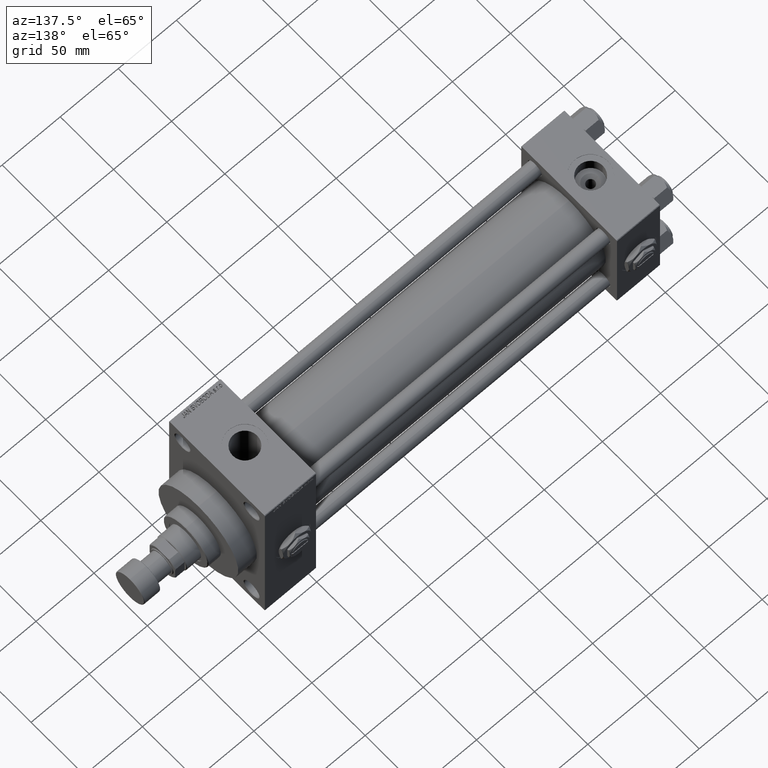
[diagram: clean part render]
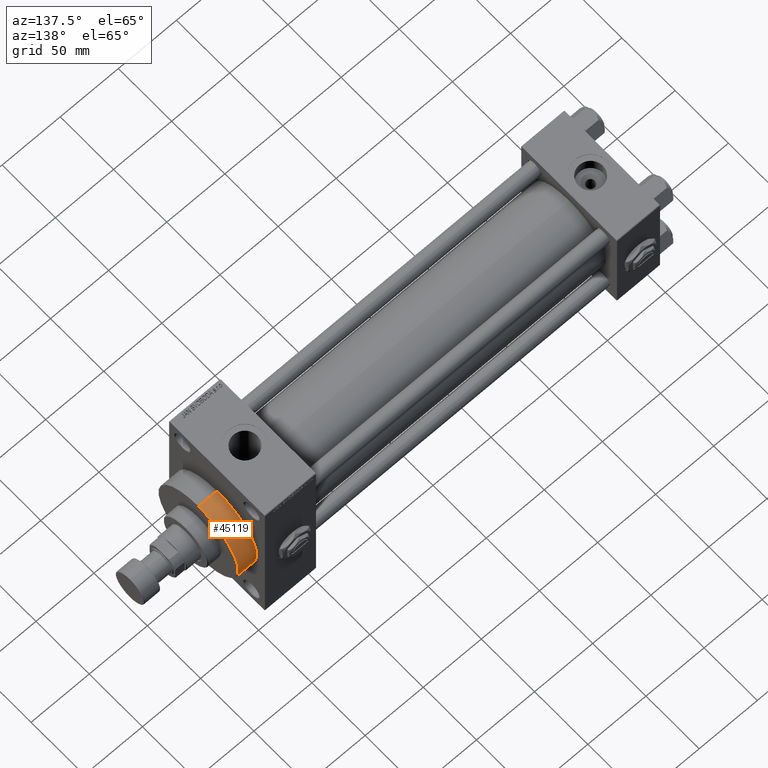
[diagram: same view with one face highlighted and labeled with its STEP entity id]
A machine part, auxiliary view. The second image highlights one B-rep face of the part: STEP entity #45119.
In plain terms, the highlighted cylindrical surface (partial cylindrical patch) has radius 37.5 mm, axis along (-1, -0, -0).
Its self-contained STEP definition (entity closure, byte-faithful):
#304 = CARTESIAN_POINT ( 'NONE',  ( 356.0000000000000000, 0.000000000000000000, 37.50000000000000711 ) ) ;
#387 = DIRECTION ( 'NONE',  ( 1.000000000000000000, 0.000000000000000000, 0.000000000000000000 ) ) ;
#4907 = DIRECTION ( 'NONE',  ( 0.000000000000000000, 0.000000000000000000, -1.000000000000000000 ) ) ;
#7476 = CARTESIAN_POINT ( 'NONE',  ( 356.0000000000000000, 0.000000000000000000, 37.50000000000000711 ) ) ;
#8190 = CARTESIAN_POINT ( 'NONE',  ( 339.9999999999999432, 0.000000000000000000, 37.50000000000000711 ) ) ;
#10712 = CIRCLE ( 'NONE', #37257, 37.50000000000000711 ) ;
#13390 = DIRECTION ( 'NONE',  ( -1.000000000000000000, -0.000000000000000000, -0.000000000000000000 ) ) ;
#14285 = EDGE_CURVE ( 'NONE', #24294, #31739, #27251, .T. ) ;
#14645 = CARTESIAN_POINT ( 'NONE',  ( 339.9999999999999432, 0.000000000000000000, 0.000000000000000000 ) ) ;
#14652 = CARTESIAN_POINT ( 'NONE',  ( 356.0000000000000000, 4.592425496802575156E-15, -37.50000000000000711 ) ) ;
#15354 = EDGE_LOOP ( 'NONE', ( #29305, #41489, #45639, #47307 ) ) ;
#17350 = EDGE_CURVE ( 'NONE', #47673, #35026, #40108, .T. ) ;
#17758 = CARTESIAN_POINT ( 'NONE',  ( 356.0000000000000000, 0.000000000000000000, 0.000000000000000000 ) ) ;
#18337 = VECTOR ( 'NONE', #26743, 1000.000000000000000 ) ;
#19328 = VECTOR ( 'NONE', #13390, 1000.000000000000000 ) ;
#19533 = AXIS2_PLACEMENT_3D ( 'NONE', #14645, #29531, #30013 ) ;
#20245 = CARTESIAN_POINT ( 'NONE',  ( 339.9999999999999432, 4.592425496802575156E-15, -37.50000000000000711 ) ) ;
#22612 = EDGE_CURVE ( 'NONE', #35026, #31739, #38843, .T. ) ;
#24294 = VERTEX_POINT ( 'NONE', #7476 ) ;
#26743 = DIRECTION ( 'NONE',  ( -1.000000000000000000, -0.000000000000000000, -0.000000000000000000 ) ) ;
#27251 = LINE ( 'NONE', #304, #18337 ) ;
#28611 = FACE_OUTER_BOUND ( 'NONE', #15354, .T. ) ;
#29305 = ORIENTED_EDGE ( 'NONE', *, *, #40011, .F. ) ;
#29531 = DIRECTION ( 'NONE',  ( 1.000000000000000000, 0.000000000000000000, 0.000000000000000000 ) ) ;
#30013 = DIRECTION ( 'NONE',  ( 0.000000000000000000, 0.000000000000000000, -1.000000000000000000 ) ) ;
#31739 = VERTEX_POINT ( 'NONE', #8190 ) ;
#35026 = VERTEX_POINT ( 'NONE', #20245 ) ;
#37257 = AXIS2_PLACEMENT_3D ( 'NONE', #42435, #387, #4907 ) ;
#38843 = CIRCLE ( 'NONE', #19533, 37.50000000000000711 ) ;
#39859 = CARTESIAN_POINT ( 'NONE',  ( 356.0000000000000000, 4.592425496802575156E-15, -37.50000000000000711 ) ) ;
#40011 = EDGE_CURVE ( 'NONE', #47673, #24294, #10712, .T. ) ;
#40108 = LINE ( 'NONE', #39859, #19328 ) ;
#40675 = DIRECTION ( 'NONE',  ( -1.000000000000000000, -0.000000000000000000, -0.000000000000000000 ) ) ;
#41489 = ORIENTED_EDGE ( 'NONE', *, *, #17350, .T. ) ;
#42435 = CARTESIAN_POINT ( 'NONE',  ( 356.0000000000000000, 0.000000000000000000, 0.000000000000000000 ) ) ;
#43940 = CYLINDRICAL_SURFACE ( 'NONE', #45449, 37.50000000000000711 ) ;
#45119 = ADVANCED_FACE ( 'NONE', ( #28611 ), #43940, .T. ) ;
#45449 = AXIS2_PLACEMENT_3D ( 'NONE', #17758, #40675, #47943 ) ;
#45639 = ORIENTED_EDGE ( 'NONE', *, *, #22612, .T. ) ;
#47307 = ORIENTED_EDGE ( 'NONE', *, *, #14285, .F. ) ;
#47673 = VERTEX_POINT ( 'NONE', #14652 ) ;
#47943 = DIRECTION ( 'NONE',  ( 0.000000000000000000, 0.000000000000000000, 1.000000000000000000 ) ) ;